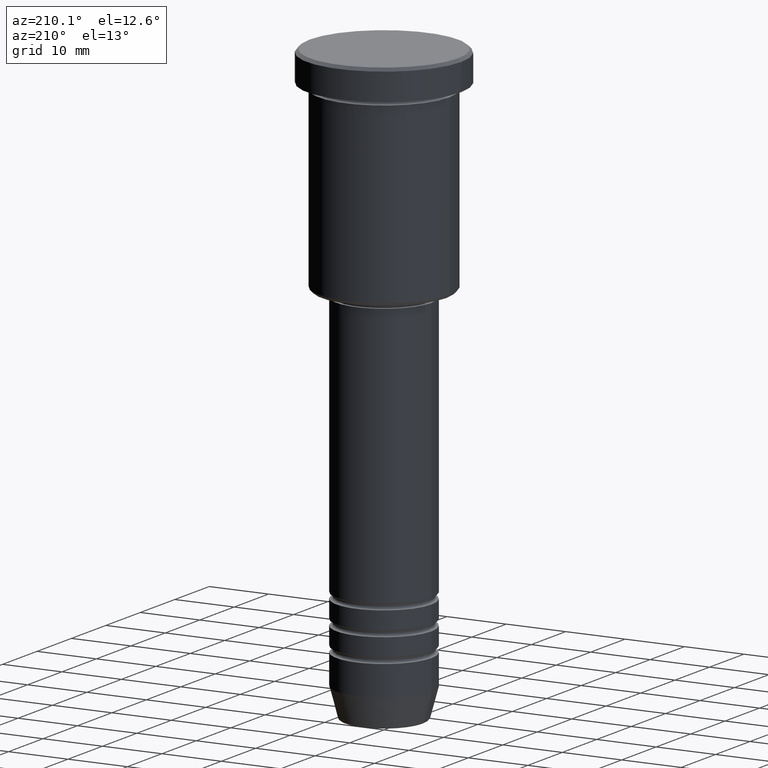
[diagram: clean part render]
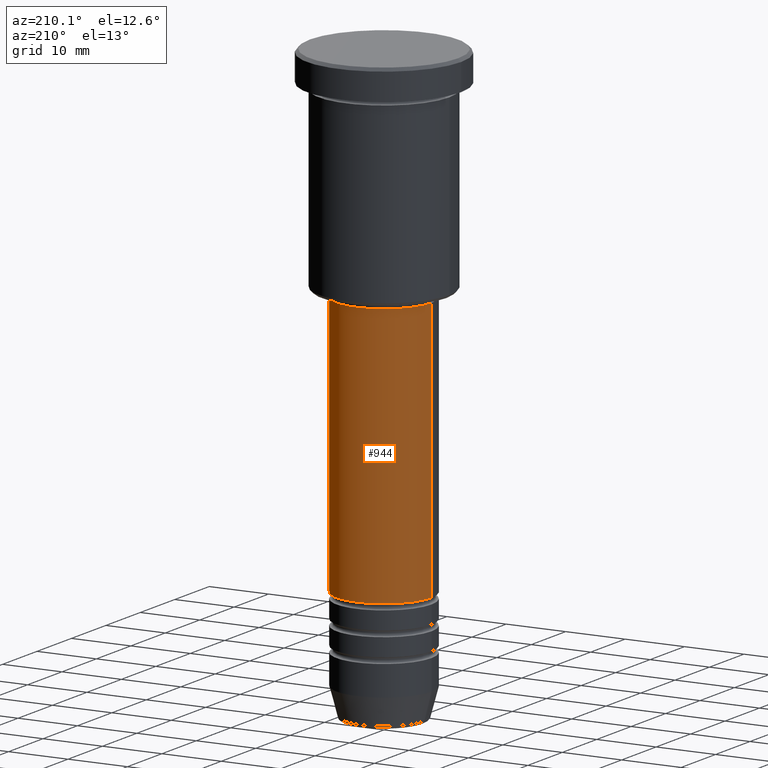
[diagram: same view with one face highlighted and labeled with its STEP entity id]
A machine part, auxiliary view. The second image highlights one B-rep face of the part: STEP entity #944.
In plain terms, the highlighted cylindrical surface (partial cylindrical patch) has radius 8 mm, axis along (-0, -0, 1).
Its self-contained STEP definition (entity closure, byte-faithful):
#37 = CYLINDRICAL_SURFACE ( 'NONE', #690, 8.000000000000000000 ) ;
#38 = VERTEX_POINT ( 'NONE', #737 ) ;
#51 = EDGE_CURVE ( 'NONE', #38, #735, #431, .T. ) ;
#59 = VERTEX_POINT ( 'NONE', #580 ) ;
#102 = VECTOR ( 'NONE', #164, 1000.000000000000000 ) ;
#164 = DIRECTION ( 'NONE',  ( -0.000000000000000000, -0.000000000000000000, 1.000000000000000000 ) ) ;
#179 = CARTESIAN_POINT ( 'NONE',  ( 8.000000000000000000, 0.000000000000000000, -37.00000000000000711 ) ) ;
#248 = CARTESIAN_POINT ( 'NONE',  ( 8.000000000000000000, 0.000000000000000000, 0.000000000000000000 ) ) ;
#313 = CARTESIAN_POINT ( 'NONE',  ( 0.000000000000000000, 0.000000000000000000, -80.99999999999998579 ) ) ;
#352 = CARTESIAN_POINT ( 'NONE',  ( -8.000000000000000000, 9.797174393178825657E-16, -80.99999999999998579 ) ) ;
#368 = CARTESIAN_POINT ( 'NONE',  ( 0.000000000000000000, 0.000000000000000000, -37.00000000000000711 ) ) ;
#406 = AXIS2_PLACEMENT_3D ( 'NONE', #313, #846, #407 ) ;
#407 = DIRECTION ( 'NONE',  ( 1.000000000000000000, 0.000000000000000000, 0.000000000000000000 ) ) ;
#416 = AXIS2_PLACEMENT_3D ( 'NONE', #368, #980, #998 ) ;
#427 = ORIENTED_EDGE ( 'NONE', *, *, #429, .F. ) ;
#429 = EDGE_CURVE ( 'NONE', #1175, #59, #987, .T. ) ;
#431 = CIRCLE ( 'NONE', #406, 8.000000000000000000 ) ;
#446 = ORIENTED_EDGE ( 'NONE', *, *, #1081, .F. ) ;
#580 = CARTESIAN_POINT ( 'NONE',  ( -8.000000000000000000, 9.797174393178825657E-16, -37.00000000000000711 ) ) ;
#690 = AXIS2_PLACEMENT_3D ( 'NONE', #952, #1036, #1123 ) ;
#735 = VERTEX_POINT ( 'NONE', #352 ) ;
#737 = CARTESIAN_POINT ( 'NONE',  ( 8.000000000000000000, 0.000000000000000000, -80.99999999999998579 ) ) ;
#760 = VECTOR ( 'NONE', #1147, 1000.000000000000000 ) ;
#846 = DIRECTION ( 'NONE',  ( -0.000000000000000000, -0.000000000000000000, 1.000000000000000000 ) ) ;
#944 = ADVANCED_FACE ( 'NONE', ( #945 ), #37, .T. ) ;
#945 = FACE_OUTER_BOUND ( 'NONE', #1079, .T. ) ;
#952 = CARTESIAN_POINT ( 'NONE',  ( 0.000000000000000000, 0.000000000000000000, 0.000000000000000000 ) ) ;
#980 = DIRECTION ( 'NONE',  ( -0.000000000000000000, -0.000000000000000000, 1.000000000000000000 ) ) ;
#987 = CIRCLE ( 'NONE', #416, 8.000000000000000000 ) ;
#998 = DIRECTION ( 'NONE',  ( 1.000000000000000000, 0.000000000000000000, 0.000000000000000000 ) ) ;
#1015 = ORIENTED_EDGE ( 'NONE', *, *, #1124, .T. ) ;
#1021 = ORIENTED_EDGE ( 'NONE', *, *, #51, .T. ) ;
#1036 = DIRECTION ( 'NONE',  ( -0.000000000000000000, -0.000000000000000000, 1.000000000000000000 ) ) ;
#1071 = LINE ( 'NONE', #1153, #760 ) ;
#1079 = EDGE_LOOP ( 'NONE', ( #1021, #1015, #427, #446 ) ) ;
#1081 = EDGE_CURVE ( 'NONE', #38, #1175, #1160, .T. ) ;
#1123 = DIRECTION ( 'NONE',  ( 1.000000000000000000, 0.000000000000000000, 0.000000000000000000 ) ) ;
#1124 = EDGE_CURVE ( 'NONE', #735, #59, #1071, .T. ) ;
#1147 = DIRECTION ( 'NONE',  ( -0.000000000000000000, -0.000000000000000000, 1.000000000000000000 ) ) ;
#1153 = CARTESIAN_POINT ( 'NONE',  ( -8.000000000000000000, 9.797174393178825657E-16, 0.000000000000000000 ) ) ;
#1160 = LINE ( 'NONE', #248, #102 ) ;
#1175 = VERTEX_POINT ( 'NONE', #179 ) ;